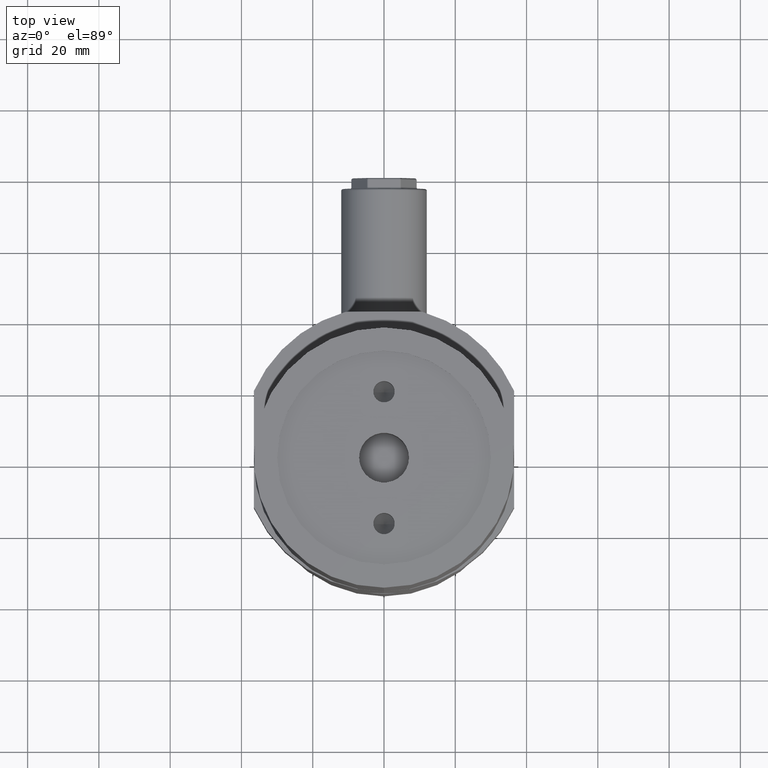
[diagram: clean part render]
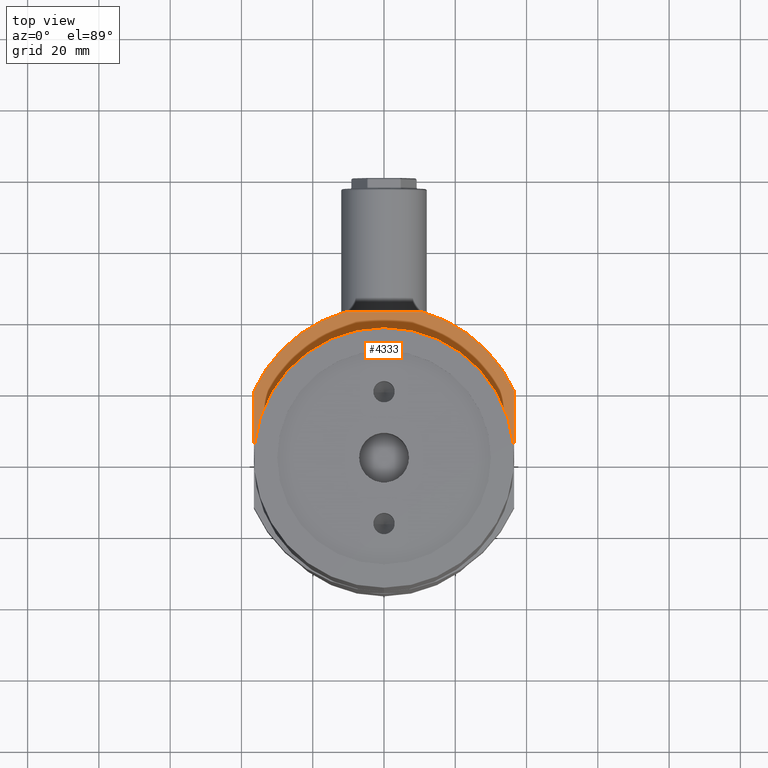
[diagram: same view with one face highlighted and labeled with its STEP entity id]
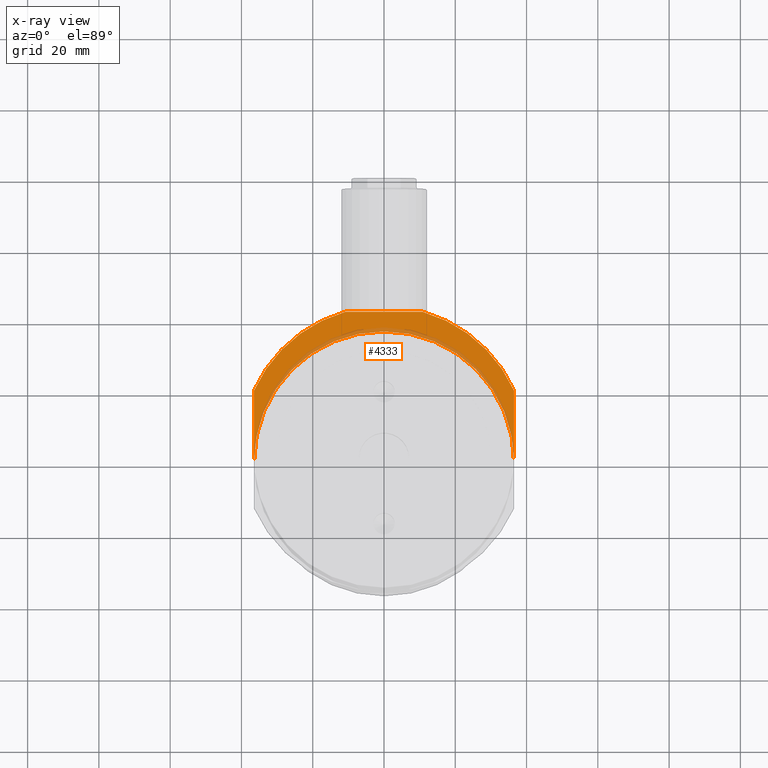
[diagram: x-ray of the same camera — body ghosted, the highlighted face saturated]
A machine part, top view. The second image highlights one B-rep face of the part: STEP entity #4333.
The next image is the same camera in x-ray: the body ghosted, the highlighted face saturated — about 14% of this face is hidden behind the body in this view.
In plain terms, the highlighted planar face has unit normal (-0, 0, -1).
Its self-contained STEP definition (entity closure, byte-faithful):
#236 = CARTESIAN_POINT ( 'NONE',  ( -36.50000000000000000, 19.85306817195360200, -63.00000000000000000 ) ) ;
#273 = LINE ( 'NONE', #5445, #6329 ) ;
#386 = ORIENTED_EDGE ( 'NONE', *, *, #2022, .F. ) ;
#394 = AXIS2_PLACEMENT_3D ( 'NONE', #5385, #5366, #5923 ) ;
#436 = CARTESIAN_POINT ( 'NONE',  ( -2.996843193803814800E-030, 3.490000000000000200, -63.00000000000000000 ) ) ;
#472 = ORIENTED_EDGE ( 'NONE', *, *, #2695, .T. ) ;
#930 = DIRECTION ( 'NONE',  ( 0.0000000000000000000, 1.000000000000000000, 0.0000000000000000000 ) ) ;
#1066 = DIRECTION ( 'NONE',  ( 0.0000000000000000000, 1.000000000000000000, 1.224606353822383900E-016 ) ) ;
#1301 = CARTESIAN_POINT ( 'NONE',  ( 36.50000000000000000, 19.85306817195360200, -63.00000000000000000 ) ) ;
#1670 = ORIENTED_EDGE ( 'NONE', *, *, #4720, .F. ) ;
#1718 = EDGE_CURVE ( 'NONE', #2251, #3077, #3708, .T. ) ;
#1798 = CIRCLE ( 'NONE', #394, 36.50000000000000000 ) ;
#2022 = EDGE_CURVE ( 'NONE', #3077, #4871, #5646, .T. ) ;
#2194 = CIRCLE ( 'NONE', #2203, 36.50000000000000000 ) ;
#2203 = AXIS2_PLACEMENT_3D ( 'NONE', #5786, #2769, #4288 ) ;
#2251 = VERTEX_POINT ( 'NONE', #236 ) ;
#2289 = VERTEX_POINT ( 'NONE', #4203 ) ;
#2517 = DIRECTION ( 'NONE',  ( -4.756893958418750000E-032, 1.224606353822383900E-016, -1.000000000000000000 ) ) ;
#2695 = EDGE_CURVE ( 'NONE', #2251, #3724, #273, .T. ) ;
#2769 = DIRECTION ( 'NONE',  ( -4.756893958418750000E-032, 1.224606353822383900E-016, -1.000000000000000000 ) ) ;
#2819 = EDGE_LOOP ( 'NONE', ( #5543, #472, #3556, #6299, #5489, #1670, #386 ) ) ;
#3006 = AXIS2_PLACEMENT_3D ( 'NONE', #3510, #5918, #6492 ) ;
#3077 = VERTEX_POINT ( 'NONE', #3574 ) ;
#3198 = CARTESIAN_POINT ( 'NONE',  ( 4.469960816887836900E-015, 36.50000000000000700, -63.00000000000000000 ) ) ;
#3249 = VERTEX_POINT ( 'NONE', #1301 ) ;
#3275 = AXIS2_PLACEMENT_3D ( 'NONE', #5526, #2517, #1066 ) ;
#3284 = CARTESIAN_POINT ( 'NONE',  ( 10.85126720710539900, 41.99000000000000200, -63.00000000000000000 ) ) ;
#3447 = CARTESIAN_POINT ( 'NONE',  ( 36.50000000000000000, 19.85306817195360200, -63.00000000000000000 ) ) ;
#3510 = CARTESIAN_POINT ( 'NONE',  ( -2.996843193803814800E-030, 3.490000000000000200, -63.00000000000000000 ) ) ;
#3556 = ORIENTED_EDGE ( 'NONE', *, *, #6310, .T. ) ;
#3574 = CARTESIAN_POINT ( 'NONE',  ( -10.85126720710539900, 41.99000000000000200, -63.00000000000000000 ) ) ;
#3708 = CIRCLE ( 'NONE', #3006, 40.00000000000000000 ) ;
#3724 = VERTEX_POINT ( 'NONE', #6473 ) ;
#3943 = DIRECTION ( 'NONE',  ( -2.120291204249984900E-016, 1.000000000000000000, 1.224606353822383900E-016 ) ) ;
#4093 = PLANE ( 'NONE',  #3275 ) ;
#4203 = CARTESIAN_POINT ( 'NONE',  ( 36.50000000000000000, 1.465391393298826200E-014, -63.00000000000000000 ) ) ;
#4288 = DIRECTION ( 'NONE',  ( 0.0000000000000000000, 1.000000000000000000, 0.0000000000000000000 ) ) ;
#4333 = ADVANCED_FACE ( 'NONE', ( #4599 ), #4093, .F. ) ;
#4556 = EDGE_CURVE ( 'NONE', #2289, #3249, #4585, .T. ) ;
#4570 = DIRECTION ( 'NONE',  ( 1.000000000000000000, 3.154042683594195100E-016, 8.194913984246259900E-033 ) ) ;
#4585 = LINE ( 'NONE', #3447, #6065 ) ;
#4599 = FACE_OUTER_BOUND ( 'NONE', #2819, .T. ) ;
#4720 = EDGE_CURVE ( 'NONE', #4871, #3249, #5208, .T. ) ;
#4781 = VECTOR ( 'NONE', #4570, 1000.000000000000000 ) ;
#4871 = VERTEX_POINT ( 'NONE', #3284 ) ;
#4921 = DIRECTION ( 'NONE',  ( -2.120291204249984900E-016, -1.000000000000000000, -1.224606353822383900E-016 ) ) ;
#5005 = CARTESIAN_POINT ( 'NONE',  ( -11.00000000000000000, 41.99000000000000200, -63.00000000000000000 ) ) ;
#5023 = EDGE_CURVE ( 'NONE', #6116, #2289, #1798, .T. ) ;
#5208 = CIRCLE ( 'NONE', #6459, 40.00000000000000000 ) ;
#5366 = DIRECTION ( 'NONE',  ( -4.756893958418750000E-032, 1.224606353822383900E-016, -1.000000000000000000 ) ) ;
#5385 = CARTESIAN_POINT ( 'NONE',  ( -2.996843193803814800E-030, 7.715020029081028800E-015, -63.00000000000000000 ) ) ;
#5445 = CARTESIAN_POINT ( 'NONE',  ( -36.50000000000000000, 19.85306817195360200, -63.00000000000000000 ) ) ;
#5489 = ORIENTED_EDGE ( 'NONE', *, *, #4556, .T. ) ;
#5526 = CARTESIAN_POINT ( 'NONE',  ( -2.996843193803814800E-030, 3.490000000000000200, -63.00000000000000000 ) ) ;
#5543 = ORIENTED_EDGE ( 'NONE', *, *, #1718, .F. ) ;
#5646 = LINE ( 'NONE', #5005, #4781 ) ;
#5786 = CARTESIAN_POINT ( 'NONE',  ( -2.996843193803814800E-030, 7.715020029081028800E-015, -63.00000000000000000 ) ) ;
#5918 = DIRECTION ( 'NONE',  ( -4.756893958418750000E-032, 1.224606353822383900E-016, -1.000000000000000000 ) ) ;
#5923 = DIRECTION ( 'NONE',  ( 0.0000000000000000000, 1.000000000000000000, 0.0000000000000000000 ) ) ;
#5974 = DIRECTION ( 'NONE',  ( -4.756893958418750000E-032, 1.224606353822383900E-016, -1.000000000000000000 ) ) ;
#6065 = VECTOR ( 'NONE', #3943, 1000.000000000000000 ) ;
#6116 = VERTEX_POINT ( 'NONE', #3198 ) ;
#6299 = ORIENTED_EDGE ( 'NONE', *, *, #5023, .T. ) ;
#6310 = EDGE_CURVE ( 'NONE', #3724, #6116, #2194, .T. ) ;
#6329 = VECTOR ( 'NONE', #4921, 1000.000000000000000 ) ;
#6459 = AXIS2_PLACEMENT_3D ( 'NONE', #436, #5974, #930 ) ;
#6473 = CARTESIAN_POINT ( 'NONE',  ( -36.50000000000000000, 1.465391393298826200E-014, -63.00000000000000000 ) ) ;
#6492 = DIRECTION ( 'NONE',  ( 0.0000000000000000000, 1.000000000000000000, 0.0000000000000000000 ) ) ;